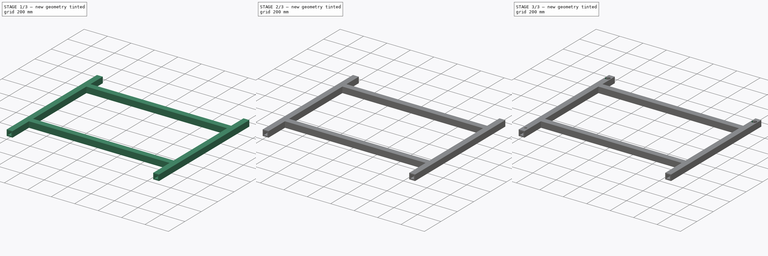
[diagram: build sequence overview — one tinted view per stage of 3, left to right]
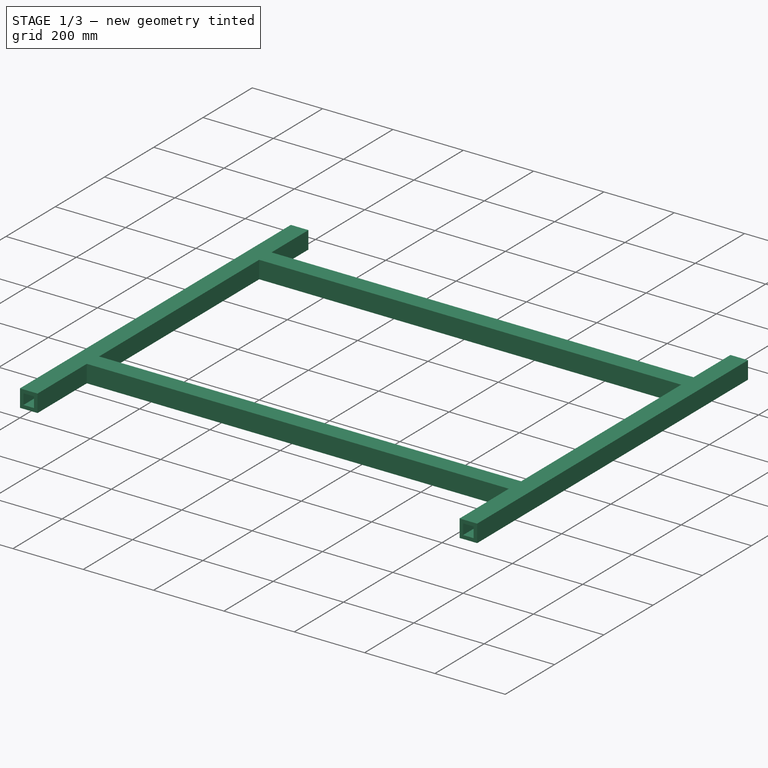
[diagram: stage 1 of 3 — iso view after this stage's code; geometry added in this stage tinted green]
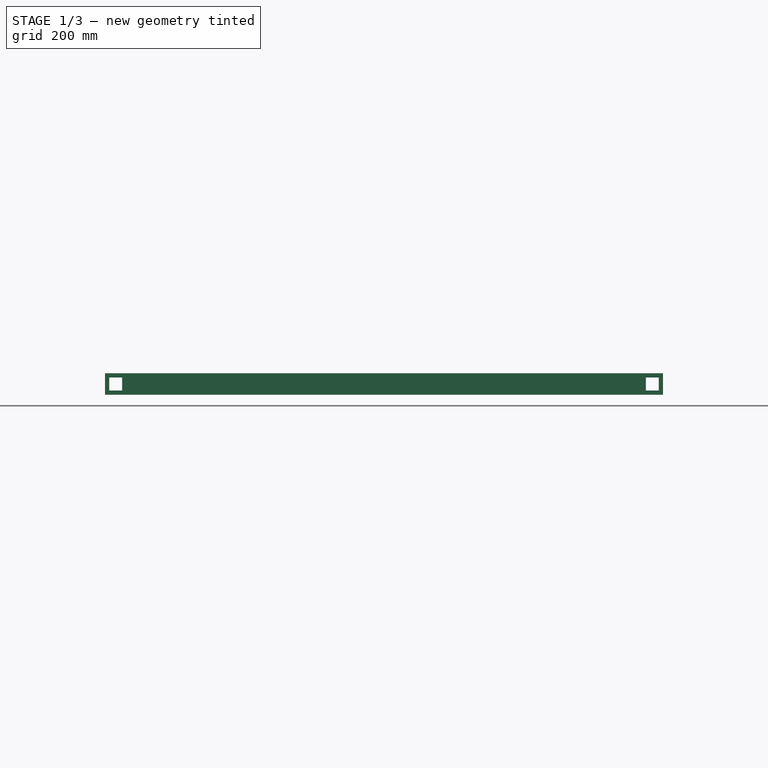
[diagram: stage 1 of 3 — front view after this stage's code; geometry added in this stage tinted green]
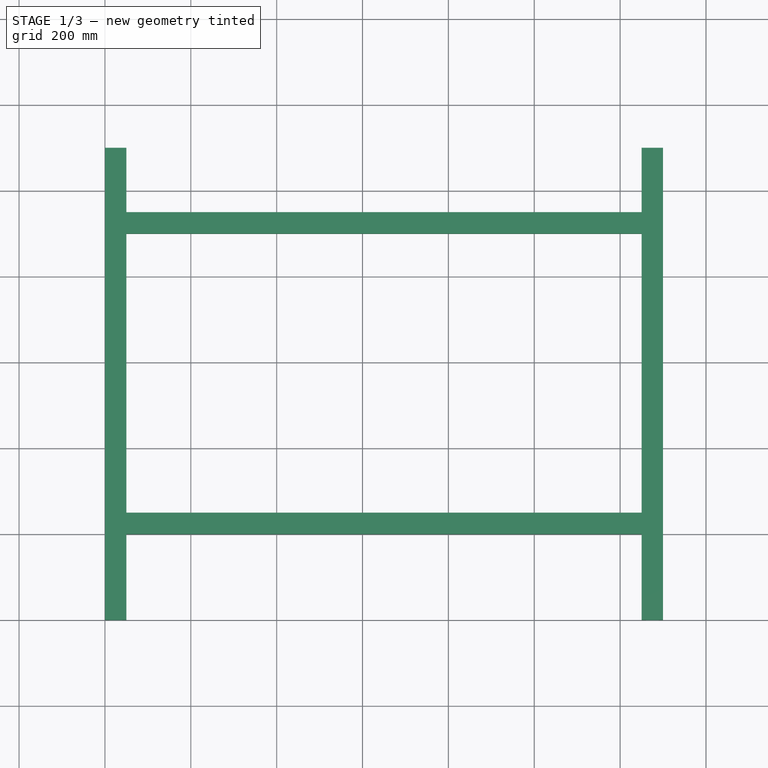
[diagram: stage 1 of 3 — top view after this stage's code; geometry added in this stage tinted green]
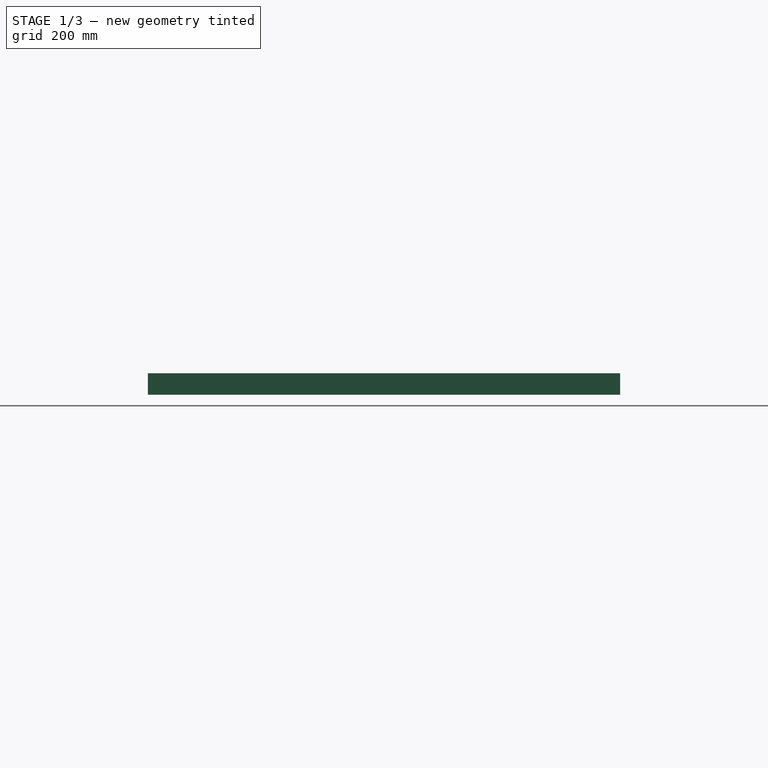
[diagram: stage 1 of 3 — right view after this stage's code; geometry added in this stage tinted green]
FCSTD DOCUMENT  (FreeCAD 0.17R10990 (Git))
Label: base frame
License: All rights reserved
LicenseURL: http://en.wikipedia.org/wiki/All_rights_reserved
objects: Sketcher::SketchObject×5, PartDesign::Pocket×4, Spreadsheet::Sheet×1, PartDesign::Pad×1, PartDesign::Body×1
note: 16 computed .brp shape members not serialized (recipe doc carries the construction recipe); baked Part::Feature solids carry a one-line shape summary decoded from their .brp

FEATURE [Spreadsheet::Sheet] Spreadsheet  label="DImensions"
  cells = A1=base frame cross section; B1(baseframecrosssection)==50mm; A2=thickness; B2(thickness)==10mm; A3=inside thickness; B3(insidethickness)==B1 - 2 * B2; A4=base frame length; B4(baseframelength)==1100mm; A5=turn angle; B5(turnangle)==90deg; A6=distance of base frame support rod from origin; B6(distanceofbaseframesupportrodfromorigin)==200mm; A7=base frame support rod length; B7(baseframesupportrodlength)==1200mm; A8=distance between second base frame support rod; B8(distancebetweensecondbaseframesupportrod)==B4 - B6; A9=distance of vertical rods from origin; B9(distanceofverticalrodsfromorigin)==B16 * 0.5; A10=radius stopper rod pocket; B10(radiusstopperrodpocket)==20mm; A11=radius stopper rod; B11(radiusstopperrod)==B10 - 0.5mm; A12=half of base frame cross section; B12(halfofbaseframecrosssection)==B1 / 2; A13=base frame width; B13(baseframewidth)==1300mm; A14=half of base frame width; B14(halfofbaseframewidth)==B13 / 2; A15=stopper rod pocket depth; B15(stopperrodpocketdepth)==45mm; A16=length of collector frame; B16(lengthofcollectorframe)==2100mm; A17=height of stopper rod; B17(heightofstopperrod)==1850mm; A18=inner radius stopper rod; B18(innerradiusstopperrod)==B11 - B2; A19=height of hole at 30; B19(heightofholeat30)==606.93600000000004mm; A20=height of hole at 45; B20(heightofholeat45)==1050mm; A21=height of hole at 60; B21(heightofholeat60)==1816.5mm; A22=radius support rod horizontol pocket; B22(radiussupportrodhorizontolpocket)==10mm; A23=radius support rod horizontol; B23(radiussupportrodhorizontol)==B22 - 0.5mm; A24=collector frame length; B24(collectorframelength)==2100mm; A25=collector frame width; B25(collectorframewidth)==1100mm; A26=collector frame height; B26(collectorframeheight)==100mm; A27=collector frame pocket depth; B27(collectorframepocketdepth)==B26 - B2; A28=collector frame width after cut; B28(collectorframewidthaftercut)==150mm; A29=collector frame pocket inner width; B29(collectorframepocketinnerwidth)==B28 - B2; A30=collector frame plane offset; B30(collectorframeplaneoffset)==-B1 / 2; A31=collector frame x distance from origin; B31(collectorframexdistancefromorigin)==(B13 - B25 - B1) / 2; A32=collector frame pocket width; B32(collectorframepocketwidth)==B25 - B2; A33=collector frame pocket length; B33(collectorframepocketlength)==B24 - B2; A34=distance of second vertical rod from origin; B34(distanceofsecondverticalrodfromorigin)==B13 - B12; A35=support pin pocket radius; B35(supportpinpocketradius)==10mm; A36=support pin pocket x distance from origin; B36(supportpinpocketxdistancefromorigin)==50mm; A37=support pin radius; B37(supportpinradius)==9.5mm; A38=support pin length; B38(supportpinlength)==100mm; A39=distance between horizontal base rods; B39(distancebetweenhorizontalbaserods)==700mm; A40=base frame crosssection internal edge; B40(baseframecrosssectioninternaledge)==B1 - 2 * B2
FEATURE [Sketcher::SketchObject] Sketch
  MapMode = 5
  Support = -> [XY_Plane]
  expr: Constraints[45] = Spreadsheet.distancebetweensecondbaseframesupportrod
  expr: Constraints[47] = Spreadsheet.baseframecrosssection
  expr: Constraints[46] = Spreadsheet.baseframecrosssection
  expr: Constraints[31] = Spreadsheet.baseframewidth
  expr: Constraints[32] = Spreadsheet.baseframelength
  expr: Constraints[33] = Spreadsheet.baseframecrosssection
  expr: Constraints[44] = Spreadsheet.baseframecrosssection
  expr: Constraints[34] = Spreadsheet.distanceofbaseframesupportrodfromorigin
  sketch-geometry (16):
    g0: LineSegment StartX=0 StartY=0 StartZ=0 EndX=0 EndY=1100 EndZ=0
    g1: LineSegment StartX=50 StartY=200 StartZ=0 EndX=1250 EndY=200 EndZ=0
    g2: LineSegment StartX=50 StartY=950 StartZ=0 EndX=1250 EndY=950 EndZ=0
    g3: LineSegment StartX=1300 StartY=1100 StartZ=0 EndX=1300 EndY=0 EndZ=0
    g4: LineSegment StartX=50 StartY=200 StartZ=0 EndX=50 EndY=0 EndZ=0
    g5: LineSegment StartX=50 StartY=0 StartZ=0 EndX=0 EndY=0 EndZ=0
    g6: LineSegment StartX=1250 StartY=200 StartZ=0 EndX=1250 EndY=0 EndZ=0
    g7: LineSegment StartX=1250 StartY=0 StartZ=0 EndX=1300 EndY=0 EndZ=0
    g8: LineSegment StartX=50 StartY=950 StartZ=0 EndX=50 EndY=1100 EndZ=0
    g9: LineSegment StartX=50 StartY=1100 StartZ=0 EndX=0 EndY=1100 EndZ=0
    g10: LineSegment StartX=1250 StartY=950 StartZ=0 EndX=1250 EndY=1100 EndZ=0
    g11: LineSegment StartX=1250 StartY=1100 StartZ=0 EndX=1300 EndY=1100 EndZ=0
    g12: LineSegment StartX=50 StartY=900 StartZ=0 EndX=1250 EndY=900 EndZ=0
    g13: LineSegment StartX=1250 StartY=900 StartZ=0 EndX=1250 EndY=250 EndZ=0
    g14: LineSegment StartX=1250 StartY=250 StartZ=0 EndX=50 EndY=250 EndZ=0
    g15: LineSegment StartX=50 StartY=250 StartZ=0 EndX=50 EndY=900 EndZ=0
  constraints (48):
    c: Coincident(g-1,g0)
    c: PointOnObject(g0,g-2)
    c: Horizontal(g1)
    c: Horizontal(g2)
    c: Vertical(g3)
    c: Equal(g0,g3)
    c: Equal(g1,g2)
    c: PointOnObject(g3,g-1)
    c: Coincident(g1,g4)
    c: PointOnObject(g4,g-1)
    c: Vertical(g4)
    c: Coincident(g4,g5)
    c: Coincident(g5,g-1)
    c: Coincident(g1,g6)
    c: PointOnObject(g6,g-1)
    c: Vertical(g6)
    c: Coincident(g6,g7)
    c: Coincident(g7,g3)
    c: Coincident(g2,g8)
    c: Vertical(g8)
    c: Coincident(g8,g9)
    c: Coincident(g9,g0)
    c: Horizontal(g9)
    c: Coincident(g2,g10)
    c: Vertical(g10)
    c: Coincident(g10,g11)
    c: Coincident(g11,g3)
    c: Horizontal(g11)
    c: Equal(g9,g5)
    c: Equal(g5,g7)
    c: Equal(g7,g11)
    c: DistanceX(g-1,g3) = 1300
    c: DistanceY(g3,g3) = 1100
    c: DistanceX(g9,g9) = 50
    c: DistanceY(g-1,g1) = 200
    c: Coincident(g12,g13)
    c: Coincident(g13,g14)
    c: Coincident(g14,g15)
    c: Coincident(g15,g12)
    c: Horizontal(g12)
    c: Horizontal(g14)
    c: Vertical(g13)
    c: Vertical(g15)
    c: Equal(g14,g1)
    c: DistanceY(g12,g2) = 50
    c: DistanceY(g-1,g12) = 900
    c: DistanceX(g12,g3) = 50
    c: DistanceY(g1,g13) = 50
FEATURE [PartDesign::Pad] Pad
  Length = 50
  Length2 = 100
  Profile = -> Sketch
  Type = 0
  expr: Length = Spreadsheet.baseframecrosssection
FEATURE [Sketcher::SketchObject] Sketch001
  ExternalGeometry = -> [Pad]
  MapMode = 5
  Placement = pos=(0,0,0) rot=(1,0,0;1.5708rad)
  Support = -> [Pad]
  expr: Constraints[22] = Spreadsheet.thickness
  expr: Constraints[21] = Spreadsheet.thickness
  expr: Constraints[20] = Spreadsheet.thickness
  expr: Constraints[23] = Spreadsheet.thickness
  expr: Constraints[19] = Spreadsheet.thickness
  sketch-geometry (8):
    g0: LineSegment StartX=10 StartY=40 StartZ=0 EndX=40 EndY=40 EndZ=0
    g1: LineSegment StartX=40 StartY=40 StartZ=0 EndX=40 EndY=10 EndZ=0
    g2: LineSegment StartX=40 StartY=10 StartZ=0 EndX=10 EndY=10 EndZ=0
    g3: LineSegment StartX=10 StartY=10 StartZ=0 EndX=10 EndY=40 EndZ=0
    g4: LineSegment StartX=1260 StartY=40 StartZ=0 EndX=1290 EndY=40 EndZ=0
    g5: LineSegment StartX=1290 StartY=40 StartZ=0 EndX=1290 EndY=10 EndZ=0
    g6: LineSegment StartX=1290 StartY=10 StartZ=0 EndX=1260 EndY=10 EndZ=0
    g7: LineSegment StartX=1260 StartY=10 StartZ=0 EndX=1260 EndY=40 EndZ=0
  constraints (24):
    c: Coincident(g0,g1)
    c: Coincident(g1,g2)
    c: Coincident(g2,g3)
    c: Coincident(g3,g0)
    c: Horizontal(g0)
    c: Horizontal(g2)
    c: Vertical(g1)
    c: Vertical(g3)
    c: Coincident(g4,g5)
    c: Coincident(g5,g6)
    c: Coincident(g6,g7)
    c: Coincident(g7,g4)
    c: Horizontal(g4)
    c: Horizontal(g6)
    c: Vertical(g5)
    c: Vertical(g7)
    c: Equal(g1,g2)
    c: Equal(g2,g6)
    c: Equal(g6,g5)
    c: DistanceX(g-1,g2) = 10
    c: DistanceY(g-1,g2) = 10
    c: DistanceY(g0,g-3) = 10
    c: DistanceX(g-5,g6) = 10
    c: DistanceY(g-5,g6) = 10
FEATURE [PartDesign::Pocket] Pocket
  BaseFeature = -> Pad
  Length = 1100
  Profile = -> Sketch001
  Type = 0
  expr: Length = Spreadsheet.baseframelength
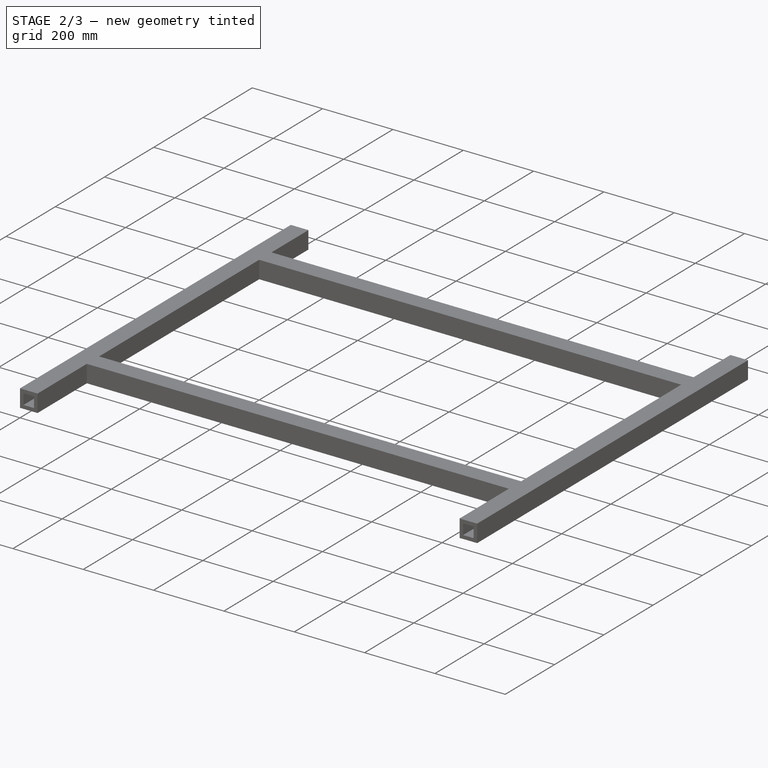
[diagram: stage 2 of 3 — iso view after this stage's code; geometry added in this stage tinted green]
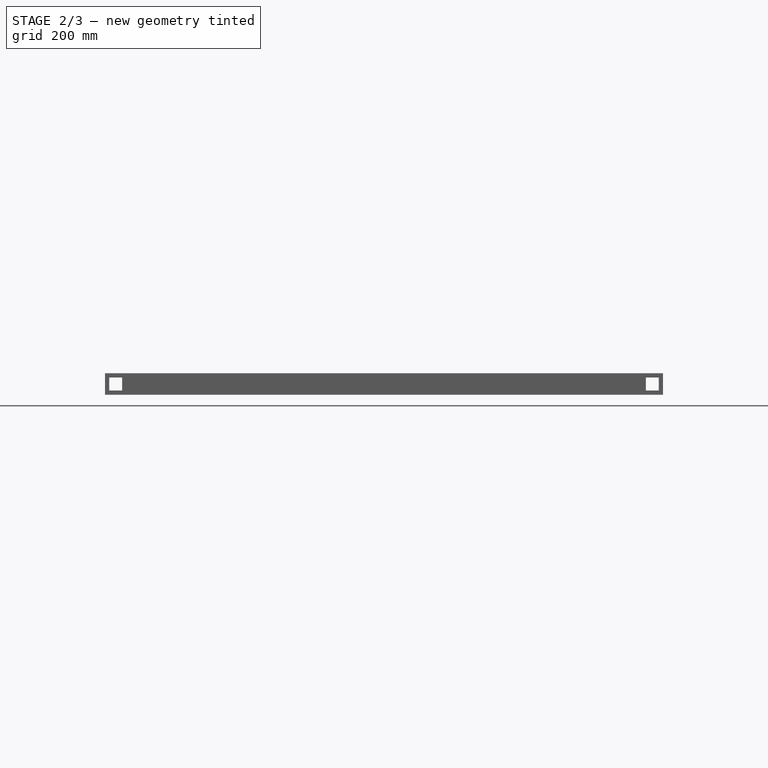
[diagram: stage 2 of 3 — front view after this stage's code; geometry added in this stage tinted green]
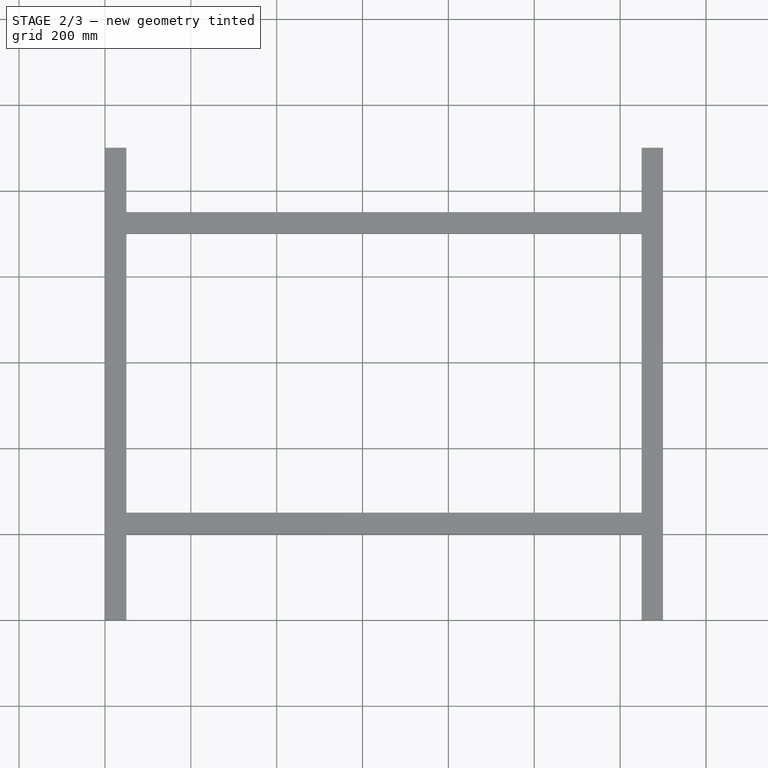
[diagram: stage 2 of 3 — top view after this stage's code; geometry added in this stage tinted green]
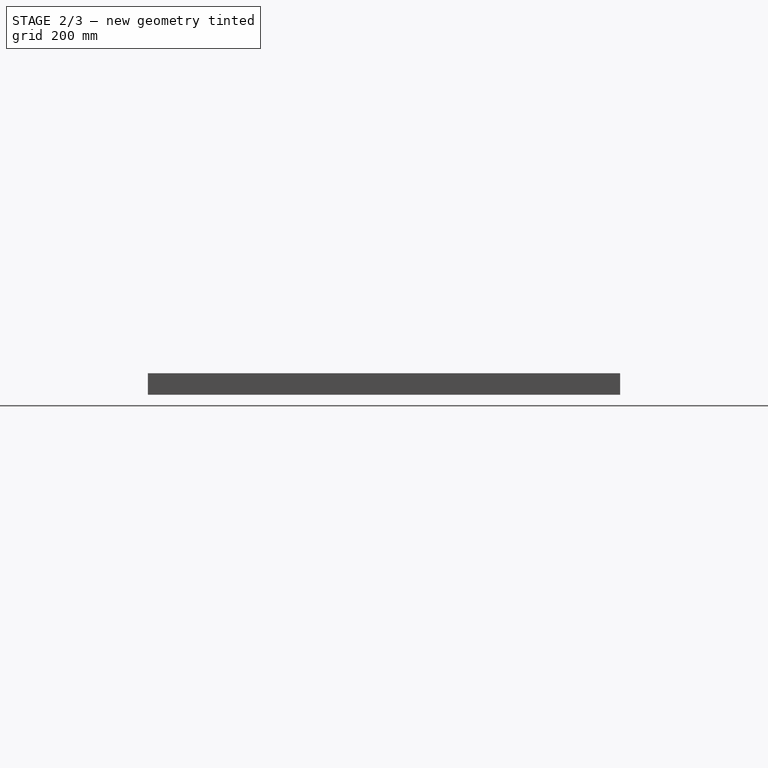
[diagram: stage 2 of 3 — right view after this stage's code; geometry added in this stage tinted green]
FEATURE [Sketcher::SketchObject] Sketch002
  MapMode = 5
  Placement = pos=(50,0,0) rot=(0.57735,0.57735,0.57735;2.0944rad)
  Support = -> [Pocket]
  expr: Constraints[24] = Spreadsheet.thickness
  expr: Constraints[23] = Spreadsheet.distanceofbaseframesupportrodfromorigin
  expr: Constraints[25] = Spreadsheet.distancebetweensecondbaseframesupportrod
  expr: Constraints[27] = Spreadsheet.thickness
  expr: Constraints[16] = Spreadsheet.thickness
  expr: Constraints[21] = Spreadsheet.baseframecrosssectioninternaledge
  sketch-geometry (10):
    g0: LineSegment StartX=210 StartY=40 StartZ=0 EndX=240 EndY=40 EndZ=0
    g1: LineSegment StartX=240 StartY=40 StartZ=0 EndX=240 EndY=10 EndZ=0
    g2: LineSegment StartX=240 StartY=10 StartZ=0 EndX=210 EndY=10 EndZ=0
    g3: LineSegment StartX=210 StartY=10 StartZ=0 EndX=210 EndY=40 EndZ=0
    g4: LineSegment StartX=940 StartY=40 StartZ=0 EndX=910 EndY=40 EndZ=0
    g5: LineSegment StartX=910 StartY=40 StartZ=0 EndX=910 EndY=10 EndZ=0
    g6: LineSegment StartX=910 StartY=10 StartZ=0 EndX=940 EndY=10 EndZ=0
    g7: LineSegment StartX=940 StartY=10 StartZ=0 EndX=940 EndY=40 EndZ=0
    g8: GeomPoint X=200 Y=10 Z=0
    g9: GeomPoint X=900 Y=10 Z=0
  constraints (28):
    c: Coincident(g0,g1)
    c: Coincident(g1,g2)
    c: Coincident(g2,g3)
    c: Coincident(g3,g0)
    c: Horizontal(g0)
    c: Horizontal(g2)
    c: Vertical(g1)
    c: Vertical(g3)
    c: Coincident(g4,g5)
    c: Coincident(g5,g6)
    c: Coincident(g6,g7)
    c: Coincident(g7,g4)
    c: Horizontal(g4)
    c: Horizontal(g6)
    c: Vertical(g5)
    c: Vertical(g7)
    c: DistanceY(g-1,g2) = 10
    c: Equal(g2,g1)
    c: Equal(g1,g6)
    c: Equal(g6,g5)
    c: DistanceY(g-1,g5) = 10
    c: DistanceX(g4,g4) = 30
    c: PointOnObject(g8,g2)
    c: DistanceX(g-1,g8) = 200
    c: DistanceX(g8,g2) = 10
    c: DistanceX(g-1,g9) = 900
    c: PointOnObject(g9,g6)
    c: DistanceX(g9,g5) = 10
FEATURE [PartDesign::Pocket] Pocket001
  BaseFeature = -> Pocket
  Length = 1200
  Profile = -> Sketch002
  Reversed = true
  Type = 0
  expr: Length = Spreadsheet.baseframesupportrodlength
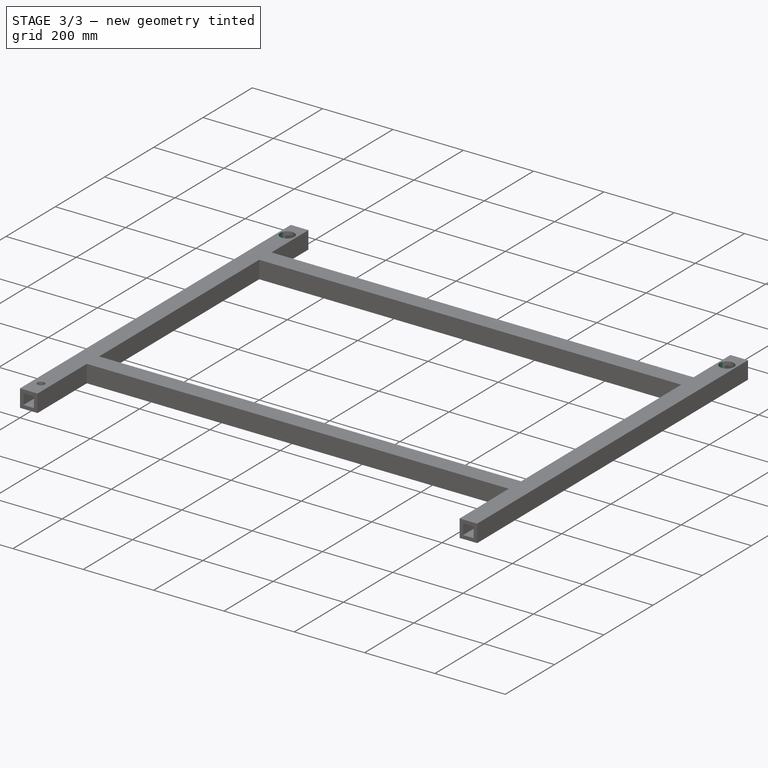
[diagram: stage 3 of 3 — iso view after this stage's code; geometry added in this stage tinted green]
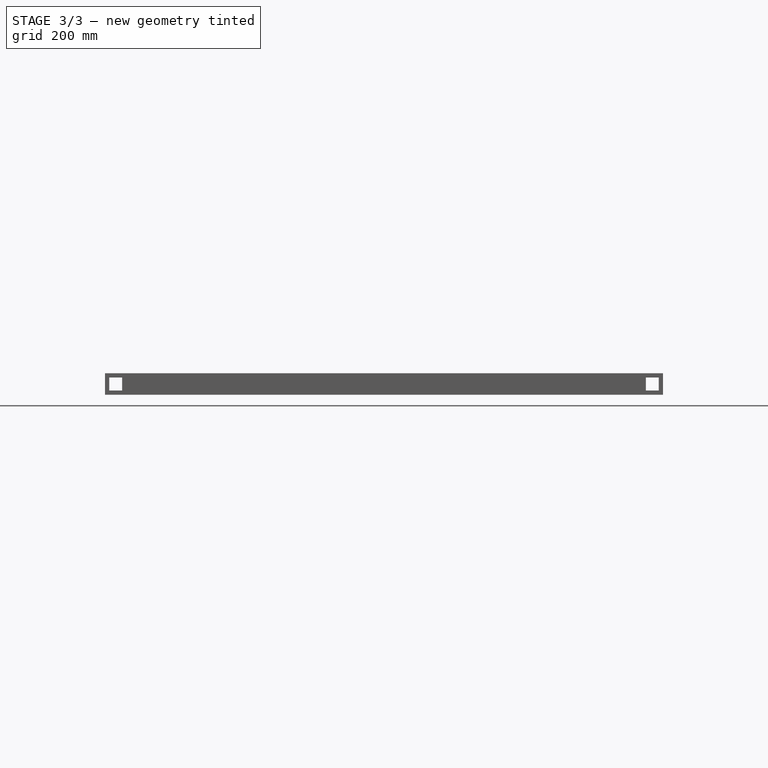
[diagram: stage 3 of 3 — front view after this stage's code; geometry added in this stage tinted green]
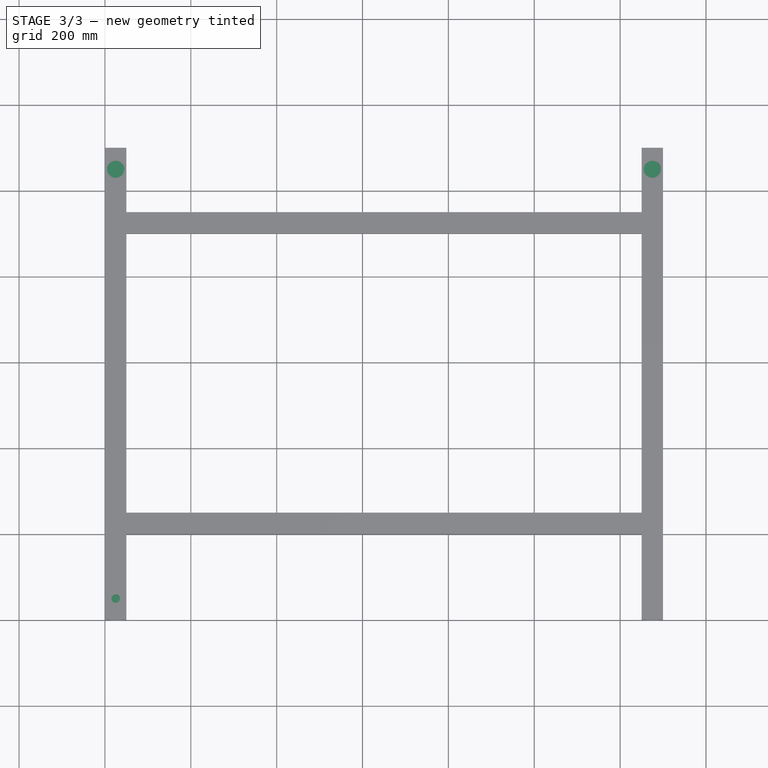
[diagram: stage 3 of 3 — top view after this stage's code; geometry added in this stage tinted green]
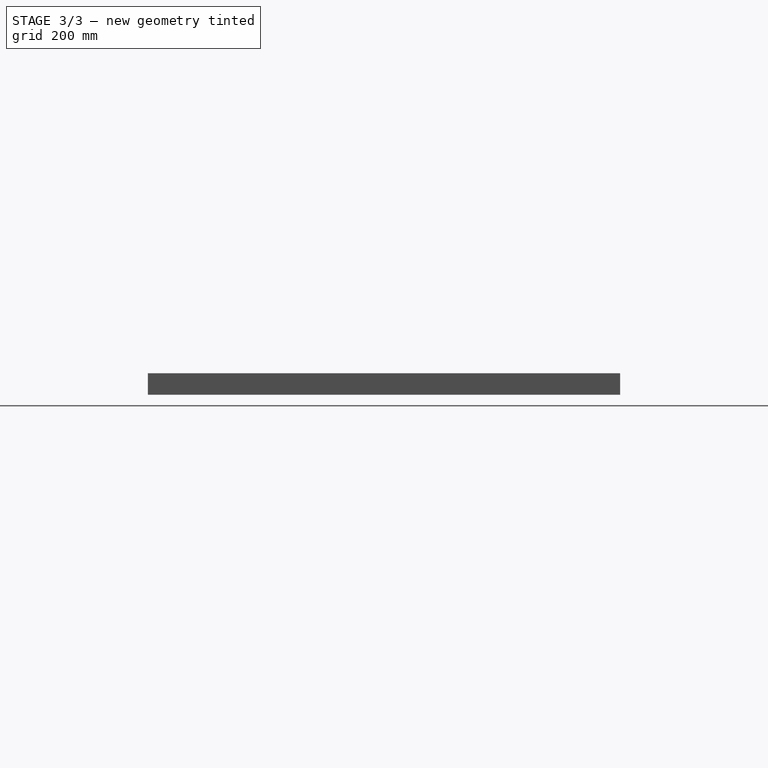
[diagram: stage 3 of 3 — right view after this stage's code; geometry added in this stage tinted green]
FEATURE [Sketcher::SketchObject] Sketch003
  MapMode = 5
  Placement = pos=(0,0,50) rot=(0,0,1;0rad)
  Support = -> [Pocket001]
  expr: Constraints[1] = Spreadsheet.distanceofverticalrodsfromorigin
  expr: Constraints[4] = Spreadsheet.distanceofsecondverticalrodfromorigin
  expr: Constraints[3] = Spreadsheet.halfofbaseframecrosssection
  expr: Constraints[5] = Spreadsheet.radiusstopperrodpocket
  expr: Constraints[2] = Spreadsheet.distanceofverticalrodsfromorigin
  sketch-geometry (2):
    g0: Circle CenterX=25 CenterY=1050 CenterZ=0 NormalX=0 NormalY=0 NormalZ=1 Radius=20
    g1: Circle CenterX=1275 CenterY=1050 CenterZ=0 NormalX=0 NormalY=0 NormalZ=1 Radius=20
  constraints (6):
    c: Equal(g0,g1)
    c: DistanceY(g-1,g0) = 1050
    c: DistanceY(g-1,g1) = 1050
    c: DistanceX(g-1,g0) = 25
    c: DistanceX(g-1,g1) = 1275
    c: Radius(g1) = 20
FEATURE [PartDesign::Pocket] Pocket002
  BaseFeature = -> Pocket001
  Length = 45
  Profile = -> Sketch003
  Type = 0
  expr: Length = Spreadsheet.stopperrodpocketdepth
FEATURE [Sketcher::SketchObject] Sketch004
  MapMode = 5
  Placement = pos=(0,0,50) rot=(0,0,1;0rad)
  Support = -> [Pocket002]
  expr: Constraints[2] = Spreadsheet.supportpinpocketxdistancefromorigin
  expr: Constraints[1] = Spreadsheet.halfofbaseframecrosssection
  expr: Constraints[0] = Spreadsheet.supportpinpocketradius
  sketch-geometry (1):
    g0: Circle CenterX=25 CenterY=50 CenterZ=0 NormalX=0 NormalY=0 NormalZ=1 Radius=10
  constraints (3):
    c: Radius(g0) = 10
    c: DistanceX(g-1,g0) = 25
    c: DistanceY(g-1,g0) = 50
FEATURE [PartDesign::Pocket] Pocket003
  BaseFeature = -> Pocket002
  Length = 45
  Profile = -> Sketch004
  Type = 0
  expr: Length = Spreadsheet.stopperrodpocketdepth
FEATURE [PartDesign::Body] Body
  Group = -> [Sketch,Pad,Sketch001,Pocket,Sketch002,Pocket001,Sketch003,Pocket002,Sketch004,Pocket003]
  Origin = -> BodyOrigin
  Tip = -> Pocket003
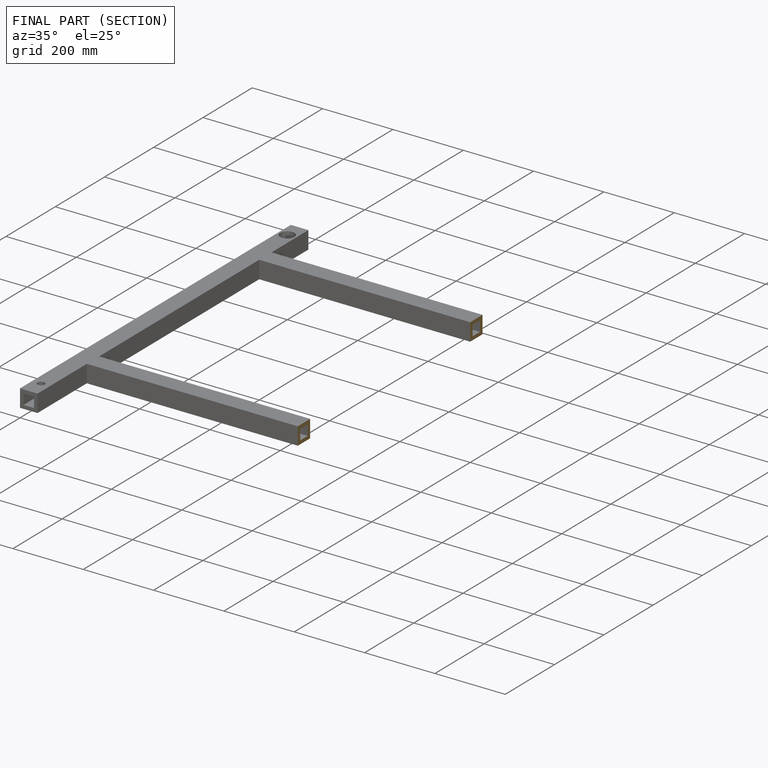
[diagram: finished part — half-section view (interior)]
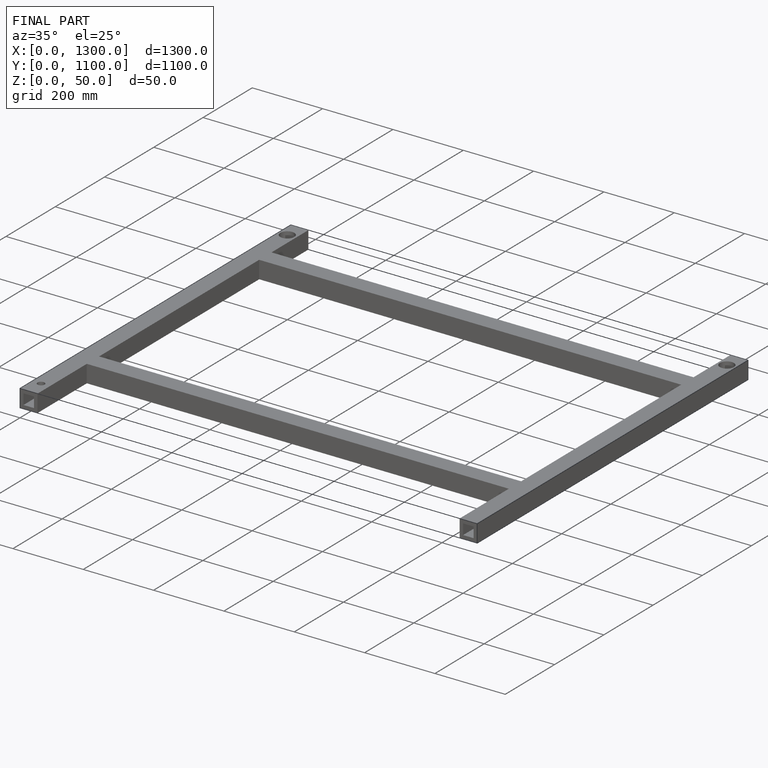
[diagram: finished part — iso view with bounding-box wireframe]
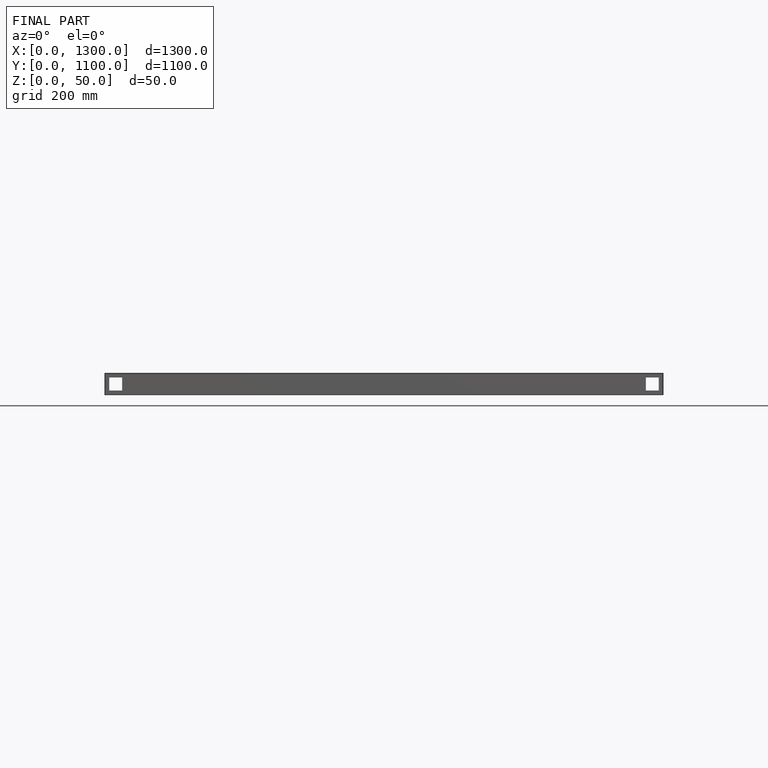
[diagram: finished part — front view with bounding-box wireframe]
